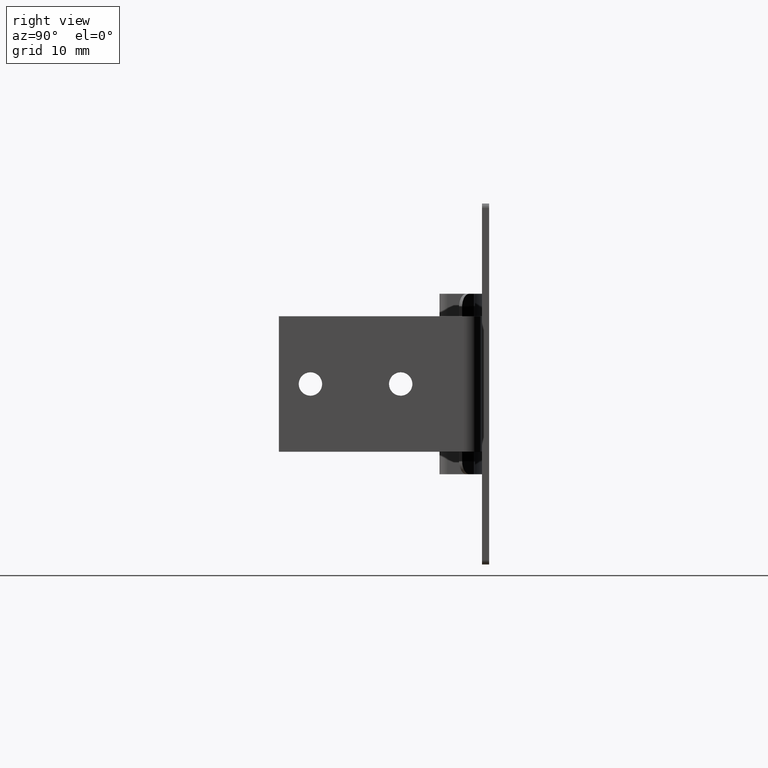
[diagram: clean part render]
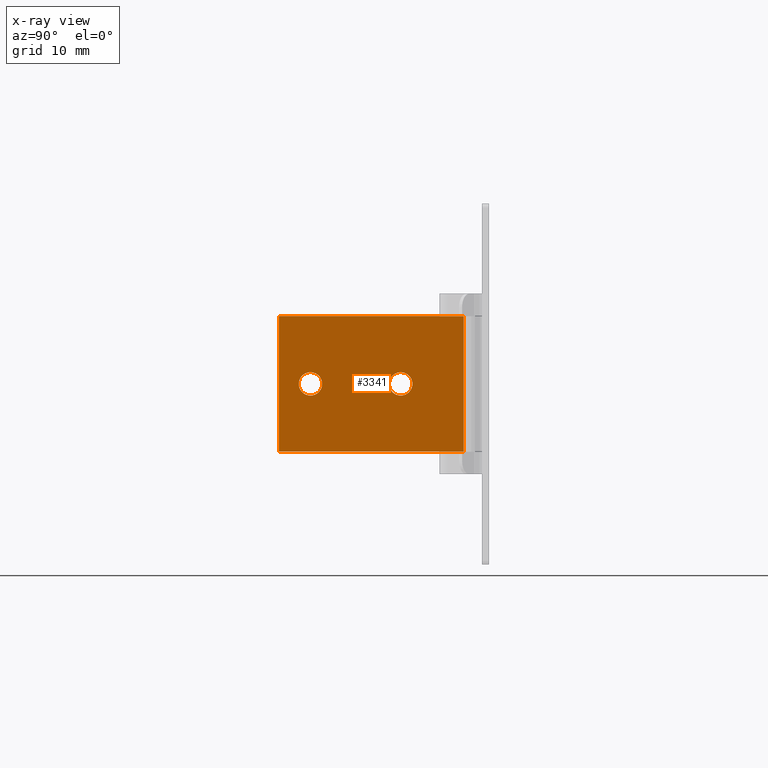
[diagram: x-ray — body ghosted, one internal face saturated and labeled with its STEP entity id]
A machine part, right view, then the same camera in x-ray: the body is ghosted and one INTERNAL B-rep face — a face not visible from any outside direction — is saturated and labeled: STEP entity #3341.
In plain terms, the highlighted face is a freeform B-spline surface patch.
Its self-contained STEP definition (entity closure, byte-faithful):
#1775=CARTESIAN_POINT('',(64.372341836916803,-0.504999999999978,0.079363101577344));
#1776=VERTEX_POINT('',#1775);
#1782=CARTESIAN_POINT('',(65.669917074854084,-0.504999999999978,1.300000000000000));
#1783=VERTEX_POINT('',#1782);
#1784=CARTESIAN_POINT('',(65.669917074854084,-0.504999999999978,1.300000000000000));
#1785=CARTESIAN_POINT('',(64.446999188220460,-0.504999999999978,1.300000000000000));
#1786=CARTESIAN_POINT('',(64.372341836916803,-0.504999999999978,0.079363101577344));
#1794=(BOUNDED_CURVE()B_SPLINE_CURVE(2,(#1784,#1785,#1786),.UNSPECIFIED.,.F.,.U.)B_SPLINE_CURVE_WITH_KNOTS((3,3),(0.500000000000000,0.739332962193557),.UNSPECIFIED.)CURVE()GEOMETRIC_REPRESENTATION_ITEM()RATIONAL_B_SPLINE_CURVE((1.0,0.719603993339883,0.976072041569447))REPRESENTATION_ITEM(''));
#1795=EDGE_CURVE('',#1783,#1776,#1794,.T.);
#1797=CARTESIAN_POINT('',(66.960829459109974,-0.504999999999978,-0.153444505195803));
#1798=VERTEX_POINT('',#1797);
#1799=CARTESIAN_POINT('',(66.960829459109974,-0.504999999999978,-0.153444505195803));
#1800=CARTESIAN_POINT('',(66.969917074854081,-0.504999999999978,-0.076991355691001));
#1801=CARTESIAN_POINT('',(66.969917074854081,-0.504999999999978,0.0));
#1802=CARTESIAN_POINT('',(66.969917074854081,-0.504999999999978,1.300000000000000));
#1803=CARTESIAN_POINT('',(65.669917074854084,-0.504999999999978,1.300000000000000));
#1811=(BOUNDED_CURVE()B_SPLINE_CURVE(2,(#1799,#1800,#1801,#1802,#1803),.UNSPECIFIED.,.F.,.U.)B_SPLINE_CURVE_WITH_KNOTS((3,2,3),(0.229562473478459,0.250000000000000,0.500000000000000),.UNSPECIFIED.)CURVE()GEOMETRIC_REPRESENTATION_ITEM()RATIONAL_B_SPLINE_CURVE((0.956026754115002,0.976055948290082,1.0,0.707106781186548,1.0))REPRESENTATION_ITEM(''));
#1812=EDGE_CURVE('',#1798,#1783,#1811,.T.);
#1856=CARTESIAN_POINT('',(65.669917074854084,-0.504999999999978,-1.300000000000000));
#1857=VERTEX_POINT('',#1856);
#1858=CARTESIAN_POINT('',(65.669917074854084,-0.504999999999978,-1.300000000000000));
#1859=CARTESIAN_POINT('',(66.824543958335042,-0.504999999999978,-1.300000000000000));
#1860=CARTESIAN_POINT('',(66.960829459109974,-0.504999999999978,-0.153444505195803));
#1868=(BOUNDED_CURVE()B_SPLINE_CURVE(2,(#1858,#1859,#1860),.UNSPECIFIED.,.F.,.U.)B_SPLINE_CURVE_WITH_KNOTS((3,3),(0.0,0.229562473478459),.UNSPECIFIED.)CURVE()GEOMETRIC_REPRESENTATION_ITEM()RATIONAL_B_SPLINE_CURVE((1.0,0.731050832896465,0.956026754115001))REPRESENTATION_ITEM(''));
#1869=EDGE_CURVE('',#1857,#1798,#1868,.T.);
#1871=CARTESIAN_POINT('',(64.372341836916803,-0.504999999999978,0.079363101577344));
#1872=CARTESIAN_POINT('',(64.369917074854101,-0.504999999999978,0.039718592470706));
#1873=CARTESIAN_POINT('',(64.369917074854101,-0.504999999999978,0.0));
#1874=CARTESIAN_POINT('',(64.369917074854101,-0.504999999999978,-1.300000000000000));
#1875=CARTESIAN_POINT('',(65.669917074854084,-0.504999999999978,-1.300000000000000));
#1883=(BOUNDED_CURVE()B_SPLINE_CURVE(2,(#1871,#1872,#1873,#1874,#1875),.UNSPECIFIED.,.F.,.U.)B_SPLINE_CURVE_WITH_KNOTS((3,2,3),(0.739332962193557,0.750000000000000,1.0),.UNSPECIFIED.)CURVE()GEOMETRIC_REPRESENTATION_ITEM()RATIONAL_B_SPLINE_CURVE((0.976072041569447,0.987502787846664,1.0,0.707106781186548,1.0))REPRESENTATION_ITEM(''));
#1884=EDGE_CURVE('',#1776,#1857,#1883,.T.);
#2147=CARTESIAN_POINT('',(74.372341836916718,-0.504999999999978,0.079363101577344));
#2148=VERTEX_POINT('',#2147);
#2154=CARTESIAN_POINT('',(75.669917074853998,-0.504999999999978,1.300000000000000));
#2155=VERTEX_POINT('',#2154);
#2156=CARTESIAN_POINT('',(75.669917074853998,-0.504999999999978,1.300000000000000));
#2157=CARTESIAN_POINT('',(74.446999188220360,-0.504999999999978,1.300000000000000));
#2158=CARTESIAN_POINT('',(74.372341836916718,-0.504999999999978,0.079363101577344));
#2166=(BOUNDED_CURVE()B_SPLINE_CURVE(2,(#2156,#2157,#2158),.UNSPECIFIED.,.F.,.U.)B_SPLINE_CURVE_WITH_KNOTS((3,3),(0.500000000000000,0.739332962193557),.UNSPECIFIED.)CURVE()GEOMETRIC_REPRESENTATION_ITEM()RATIONAL_B_SPLINE_CURVE((1.0,0.719603993339883,0.976072041569447))REPRESENTATION_ITEM(''));
#2167=EDGE_CURVE('',#2155,#2148,#2166,.T.);
#2169=CARTESIAN_POINT('',(76.960829459109874,-0.504999999999978,-0.153444505195803));
#2170=VERTEX_POINT('',#2169);
#2171=CARTESIAN_POINT('',(76.960829459109874,-0.504999999999978,-0.153444505195803));
#2172=CARTESIAN_POINT('',(76.969917074853981,-0.504999999999978,-0.076991355691001));
#2173=CARTESIAN_POINT('',(76.969917074853996,-0.504999999999978,0.0));
#2174=CARTESIAN_POINT('',(76.969917074854010,-0.504999999999978,1.300000000000000));
#2175=CARTESIAN_POINT('',(75.669917074853998,-0.504999999999978,1.300000000000000));
#2183=(BOUNDED_CURVE()B_SPLINE_CURVE(2,(#2171,#2172,#2173,#2174,#2175),.UNSPECIFIED.,.F.,.U.)B_SPLINE_CURVE_WITH_KNOTS((3,2,3),(0.229562473478459,0.250000000000000,0.500000000000000),.UNSPECIFIED.)CURVE()GEOMETRIC_REPRESENTATION_ITEM()RATIONAL_B_SPLINE_CURVE((0.956026754115002,0.976055948290082,1.0,0.707106781186548,1.0))REPRESENTATION_ITEM(''));
#2184=EDGE_CURVE('',#2170,#2155,#2183,.T.);
#2228=CARTESIAN_POINT('',(75.669917074853998,-0.504999999999978,-1.300000000000000));
#2229=VERTEX_POINT('',#2228);
#2230=CARTESIAN_POINT('',(75.669917074853998,-0.504999999999978,-1.300000000000000));
#2231=CARTESIAN_POINT('',(76.824543958334942,-0.504999999999978,-1.300000000000000));
#2232=CARTESIAN_POINT('',(76.960829459109874,-0.504999999999978,-0.153444505195803));
#2240=(BOUNDED_CURVE()B_SPLINE_CURVE(2,(#2230,#2231,#2232),.UNSPECIFIED.,.F.,.U.)B_SPLINE_CURVE_WITH_KNOTS((3,3),(0.0,0.229562473478459),.UNSPECIFIED.)CURVE()GEOMETRIC_REPRESENTATION_ITEM()RATIONAL_B_SPLINE_CURVE((1.0,0.731050832896465,0.956026754115001))REPRESENTATION_ITEM(''));
#2241=EDGE_CURVE('',#2229,#2170,#2240,.T.);
#2243=CARTESIAN_POINT('',(74.372341836916718,-0.504999999999978,0.079363101577344));
#2244=CARTESIAN_POINT('',(74.369917074854001,-0.504999999999978,0.039718592470706));
#2245=CARTESIAN_POINT('',(74.369917074854001,-0.504999999999978,0.0));
#2246=CARTESIAN_POINT('',(74.369917074854015,-0.504999999999978,-1.300000000000000));
#2247=CARTESIAN_POINT('',(75.669917074853998,-0.504999999999978,-1.300000000000000));
#2255=(BOUNDED_CURVE()B_SPLINE_CURVE(2,(#2243,#2244,#2245,#2246,#2247),.UNSPECIFIED.,.F.,.U.)B_SPLINE_CURVE_WITH_KNOTS((3,2,3),(0.739332962193557,0.750000000000000,1.0),.UNSPECIFIED.)CURVE()GEOMETRIC_REPRESENTATION_ITEM()RATIONAL_B_SPLINE_CURVE((0.976072041569447,0.987502787846664,1.0,0.707106781186548,1.0))REPRESENTATION_ITEM(''));
#2256=EDGE_CURVE('',#2148,#2229,#2255,.T.);
#2470=CARTESIAN_POINT('',(58.690690804409300,-0.505000000000000,7.500000000000170));
#2471=VERTEX_POINT('',#2470);
#2672=CARTESIAN_POINT('',(79.169917074854098,-0.505000000000000,7.500000000000170));
#2673=VERTEX_POINT('',#2672);
#2679=CARTESIAN_POINT('',(58.690690804409300,-0.505000000000000,7.500000000000170));
#2680=CARTESIAN_POINT('',(79.169917074854098,-0.505000000000000,7.500000000000170));
#2681=QUASI_UNIFORM_CURVE('',1,(#2679,#2680),.UNSPECIFIED.,.F.,.U.);
#2682=EDGE_CURVE('',#2471,#2673,#2681,.T.);
#2694=CARTESIAN_POINT('',(58.690690804409300,-0.505000000000000,-7.500000000000000));
#2695=VERTEX_POINT('',#2694);
#2711=CARTESIAN_POINT('',(79.169917074854098,-0.505000000000000,-7.500000000000000));
#2712=VERTEX_POINT('',#2711);
#2713=CARTESIAN_POINT('',(58.690690804409300,-0.505000000000000,-7.500000000000000));
#2714=CARTESIAN_POINT('',(79.169917074854098,-0.505000000000000,-7.500000000000000));
#2715=QUASI_UNIFORM_CURVE('',1,(#2713,#2714),.UNSPECIFIED.,.F.,.U.);
#2716=EDGE_CURVE('',#2695,#2712,#2715,.T.);
#3306=CARTESIAN_POINT('',(79.169917074854098,-0.505000000000000,-7.500000000000000));
#3307=CARTESIAN_POINT('',(79.169917074854098,-0.505000000000000,7.500000000000170));
#3308=QUASI_UNIFORM_CURVE('',1,(#3306,#3307),.UNSPECIFIED.,.F.,.U.);
#3309=EDGE_CURVE('',#2712,#2673,#3308,.T.);
#3314=CARTESIAN_POINT('',(57.667751715782423,-0.505000000000000,8.249249970927266));
#3315=CARTESIAN_POINT('',(57.667751715782423,-0.505000000000000,-8.249250373258448));
#3316=CARTESIAN_POINT('',(80.192851952214312,-0.505000000000000,8.249249970927266));
#3317=CARTESIAN_POINT('',(80.192851952214312,-0.505000000000000,-8.249250373258448));
#3318=B_SPLINE_SURFACE_WITH_KNOTS('',1,1,((#3314,#3316),(#3315,#3317)),.UNSPECIFIED.,.F.,.F.,.U.,(2,2),(2,2),(0.0,16.498500344185722),(0.0,22.525100236431900),.UNSPECIFIED.);
#3319=ORIENTED_EDGE('',*,*,#2682,.T.);
#3320=ORIENTED_EDGE('',*,*,#3309,.F.);
#3321=ORIENTED_EDGE('',*,*,#2716,.F.);
#3322=CARTESIAN_POINT('',(58.690690804409300,-0.505000000000000,-7.500000000000000));
#3323=CARTESIAN_POINT('',(58.690690804409300,-0.505000000000000,7.500000000000170));
#3324=QUASI_UNIFORM_CURVE('',1,(#3322,#3323),.UNSPECIFIED.,.F.,.U.);
#3325=EDGE_CURVE('',#2695,#2471,#3324,.T.);
#3326=ORIENTED_EDGE('',*,*,#3325,.T.);
#3327=EDGE_LOOP('',(#3319,#3320,#3321,#3326));
#3328=FACE_OUTER_BOUND('',#3327,.T.);
#3329=ORIENTED_EDGE('',*,*,#2167,.T.);
#3330=ORIENTED_EDGE('',*,*,#2256,.T.);
#3331=ORIENTED_EDGE('',*,*,#2241,.T.);
#3332=ORIENTED_EDGE('',*,*,#2184,.T.);
#3333=EDGE_LOOP('',(#3329,#3330,#3331,#3332));
#3334=FACE_BOUND('',#3333,.T.);
#3335=ORIENTED_EDGE('',*,*,#1795,.T.);
#3336=ORIENTED_EDGE('',*,*,#1884,.T.);
#3337=ORIENTED_EDGE('',*,*,#1869,.T.);
#3338=ORIENTED_EDGE('',*,*,#1812,.T.);
#3339=EDGE_LOOP('',(#3335,#3336,#3337,#3338));
#3340=FACE_BOUND('',#3339,.T.);
#3341=ADVANCED_FACE('',(#3328,#3334,#3340),#3318,.F.);